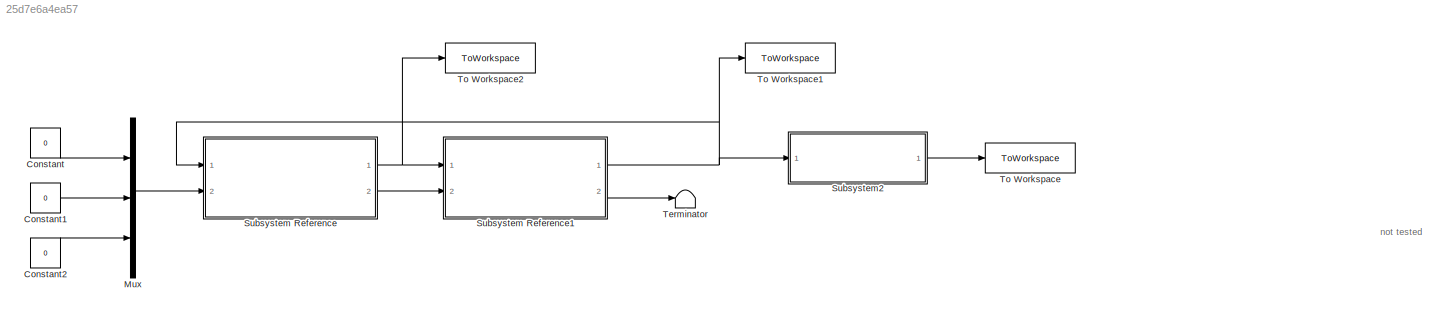
MODEL slx_25d7e6a4ea57
KIND model
CONFIG AbsTol = auto
CONFIG EnableMultiTasking = off
CONFIG FixedStep = auto
CONFIG MaxStep = auto
CONFIG MinStep = auto
CONFIG RelTol = 1e-3
CONFIG SampleTimeConstraint = Unconstrained
CONFIG SolverName = VariableStepAuto
CONFIG StartTime = 0.0
CONFIG StopTime = Torb
BLOCK [Constant] Constant
  Value = 0
BLOCK [Constant] Constant1
  Value = 0
BLOCK [Constant] Constant2
  Value = 0
BLOCK [Mux] Mux
  DisplayOption = bar
  Inputs = 3
  Ports = [3, 1]
BLOCK [SubSystem] Subsystem Reference
  Ports = [2, 2]
  ReferencedSubsystem = Dynamics
  RequestExecContextInheritance = off
BLOCK [SubSystem] Subsystem Reference1
  Ports = [2, 2]
  ReferencedSubsystem = Kinematics
  RequestExecContextInheritance = off
BLOCK [SubSystem] Subsystem2
  Ports = [1, 1]
  ReferencedSubsystem = MagDipole
  RequestExecContextInheritance = off
BLOCK [Terminator] Terminator
BLOCK [ToWorkspace] To Workspace
  FixptAsFi = on
  MaxDataPoints = inf
  Ports = [1]
  SampleTime = -1
  SaveFormat = Timeseries
  VariableName = B_ECI
BLOCK [ToWorkspace] To Workspace1
  FixptAsFi = on
  MaxDataPoints = inf
  Ports = [1]
  SampleTime = -1
  SaveFormat = Timeseries
  VariableName = r_ECI
BLOCK [ToWorkspace] To Workspace2
  FixptAsFi = on
  MaxDataPoints = inf
  Ports = [1]
  SampleTime = -1
  SaveFormat = Timeseries
  VariableName = v_ECI
ANNOTATION (root): not tested
LINE Constant1:1 -> Mux:2
LINE Constant2:1 -> Mux:3
LINE Constant:1 -> Mux:1
LINE Mux:1 -> Subsystem Reference:2
NET Subsystem Reference1:1 -> Subsystem Reference:1, Subsystem2:1, To Workspace1:1
LINE Subsystem Reference1:2 -> Terminator:1
NET Subsystem Reference:1 -> Subsystem Reference1:1, To Workspace2:1
LINE Subsystem Reference:2 -> Subsystem Reference1:2
LINE Subsystem2:1 -> To Workspace:1
note: NET lines group one-source signal fan-out (src -> all destinations, sorted); 1:1 wires keep LINE
